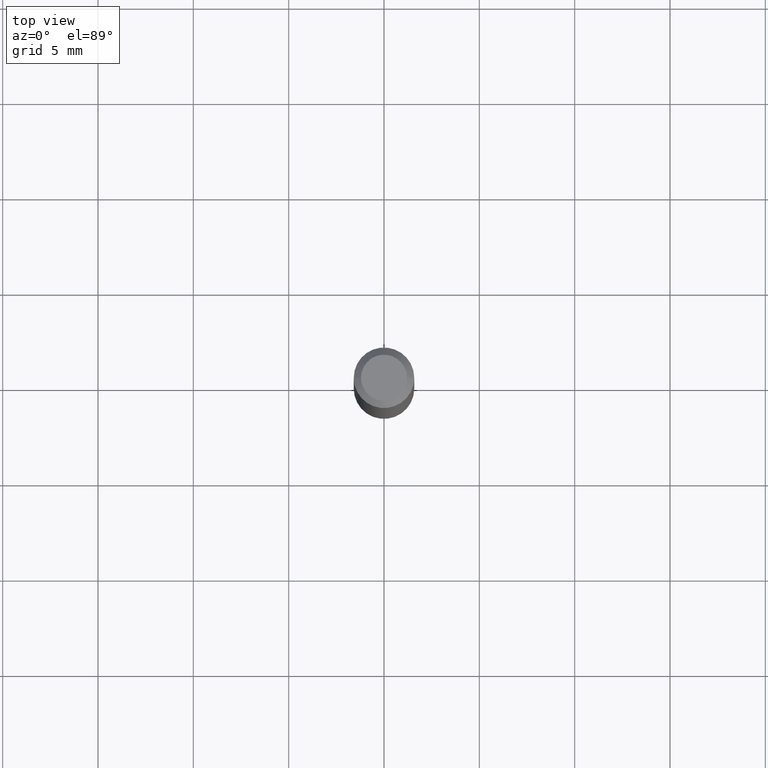
[diagram: clean part render]
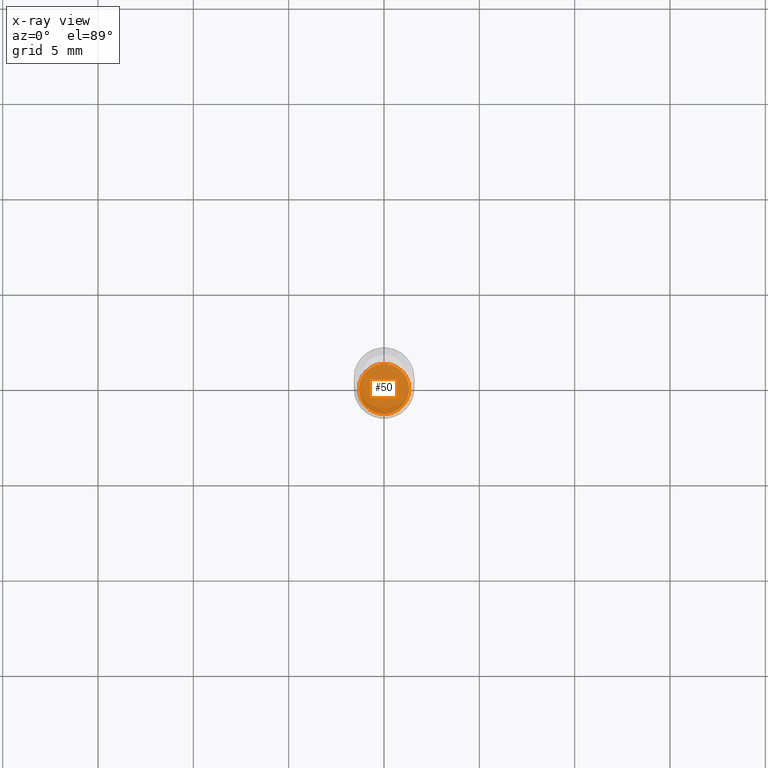
[diagram: x-ray — body ghosted, one internal face saturated and labeled with its STEP entity id]
A machine part, top view, then the same camera in x-ray: the body is ghosted and one INTERNAL B-rep face — a face not visible from any outside direction — is saturated and labeled: STEP entity #50.
In plain terms, the highlighted planar face has unit normal (-0, 0, 1).
Its self-contained STEP definition (entity closure, byte-faithful):
#33 = DIRECTION ( 'NONE',  ( 1.000000000000000000, -6.982962677686261977E-15, 0.000000000000000000 ) ) ;
#50 = ADVANCED_FACE ( 'NONE', ( #266 ), #57, .F. ) ;
#57 = PLANE ( 'NONE',  #204 ) ;
#95 = AXIS2_PLACEMENT_3D ( 'NONE', #179, #214, #260 ) ;
#120 = ORIENTED_EDGE ( 'NONE', *, *, #325, .F. ) ;
#126 = VERTEX_POINT ( 'NONE', #486 ) ;
#131 = DIRECTION ( 'NONE',  ( 1.000000000000000000, -6.982962677686265922E-15, 4.876176775795935793E-29 ) ) ;
#179 = CARTESIAN_POINT ( 'NONE',  ( 3.283041872303546419E-29, -4.687313697396923253E-15, -1.342500000000000249 ) ) ;
#181 = CARTESIAN_POINT ( 'NONE',  ( 3.283041872303546419E-29, -4.687313697396923253E-15, -1.342500000000000249 ) ) ;
#204 = AXIS2_PLACEMENT_3D ( 'NONE', #452, #256, #131 ) ;
#214 = DIRECTION ( 'NONE',  ( -2.445468806185136597E-29, 3.491481338843145583E-15, 1.000000000000000000 ) ) ;
#256 = DIRECTION ( 'NONE',  ( -2.438088387897960049E-29, 3.491481338843145188E-15, 1.000000000000000000 ) ) ;
#260 = DIRECTION ( 'NONE',  ( 1.000000000000000000, -6.982962677686261977E-15, 0.000000000000000000 ) ) ;
#266 = FACE_OUTER_BOUND ( 'NONE', #400, .T. ) ;
#288 = CIRCLE ( 'NONE', #517, 0.05199999999999996986 ) ;
#311 = ORIENTED_EDGE ( 'NONE', *, *, #499, .F. ) ;
#312 = CARTESIAN_POINT ( 'NONE',  ( 0.05199999999999996986, -5.050427756636608617E-15, -1.342500000000000249 ) ) ;
#325 = EDGE_CURVE ( 'NONE', #126, #513, #404, .T. ) ;
#337 = DIRECTION ( 'NONE',  ( -2.445468806185136597E-29, 3.491481338843145583E-15, 1.000000000000000000 ) ) ;
#400 = EDGE_LOOP ( 'NONE', ( #311, #120 ) ) ;
#404 = CIRCLE ( 'NONE', #95, 0.05199999999999996986 ) ;
#452 = CARTESIAN_POINT ( 'NONE',  ( 3.283041872303546419E-29, -4.687313697396923253E-15, -1.342500000000000249 ) ) ;
#486 = CARTESIAN_POINT ( 'NONE',  ( -0.05199999999999996986, -4.315182247627560416E-15, -1.342500000000000249 ) ) ;
#499 = EDGE_CURVE ( 'NONE', #513, #126, #288, .T. ) ;
#513 = VERTEX_POINT ( 'NONE', #312 ) ;
#517 = AXIS2_PLACEMENT_3D ( 'NONE', #181, #337, #33 ) ;